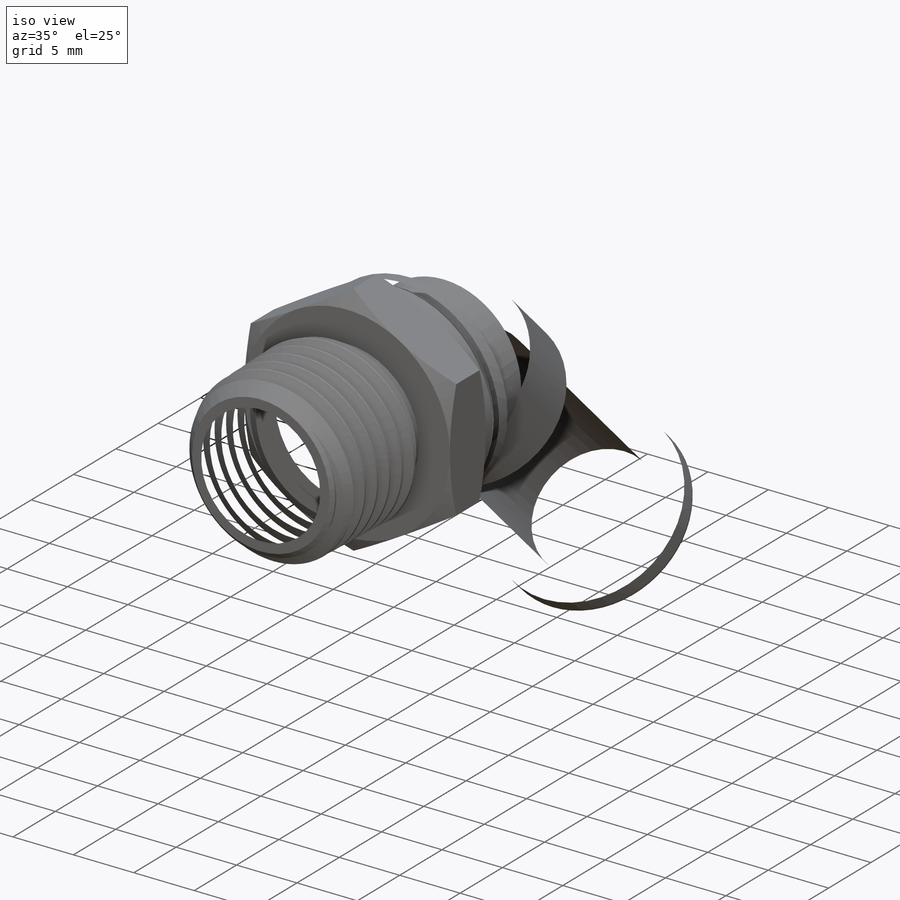
[diagram: iso view]
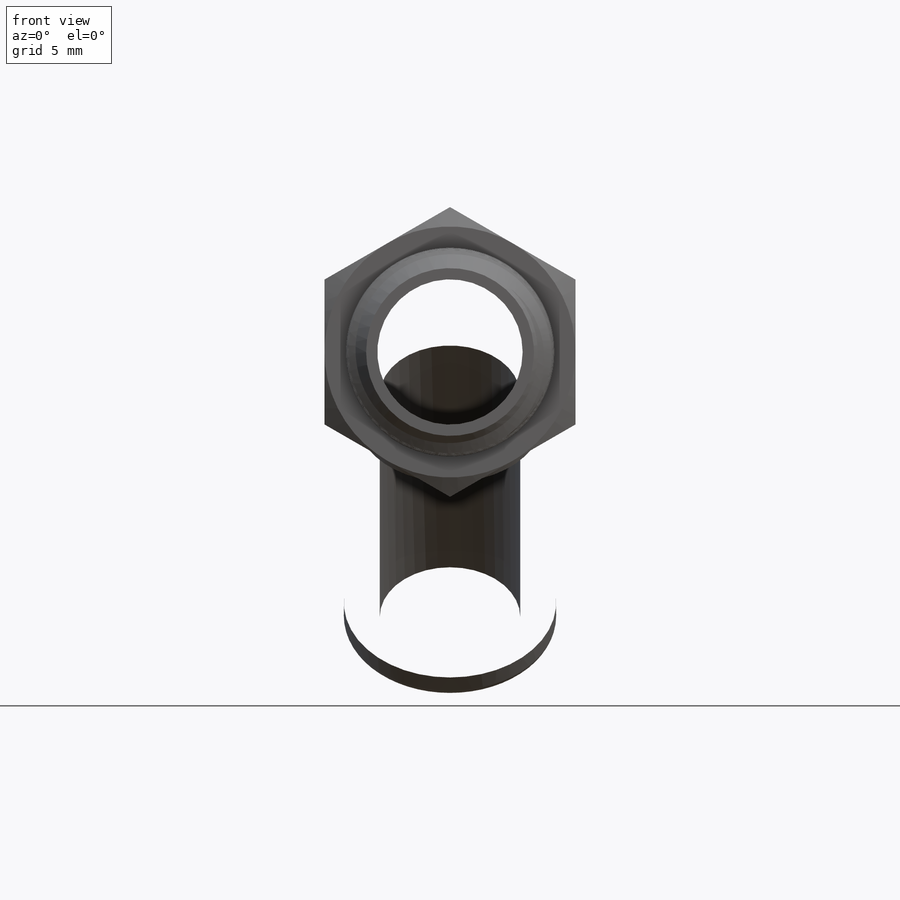
[diagram: front view]
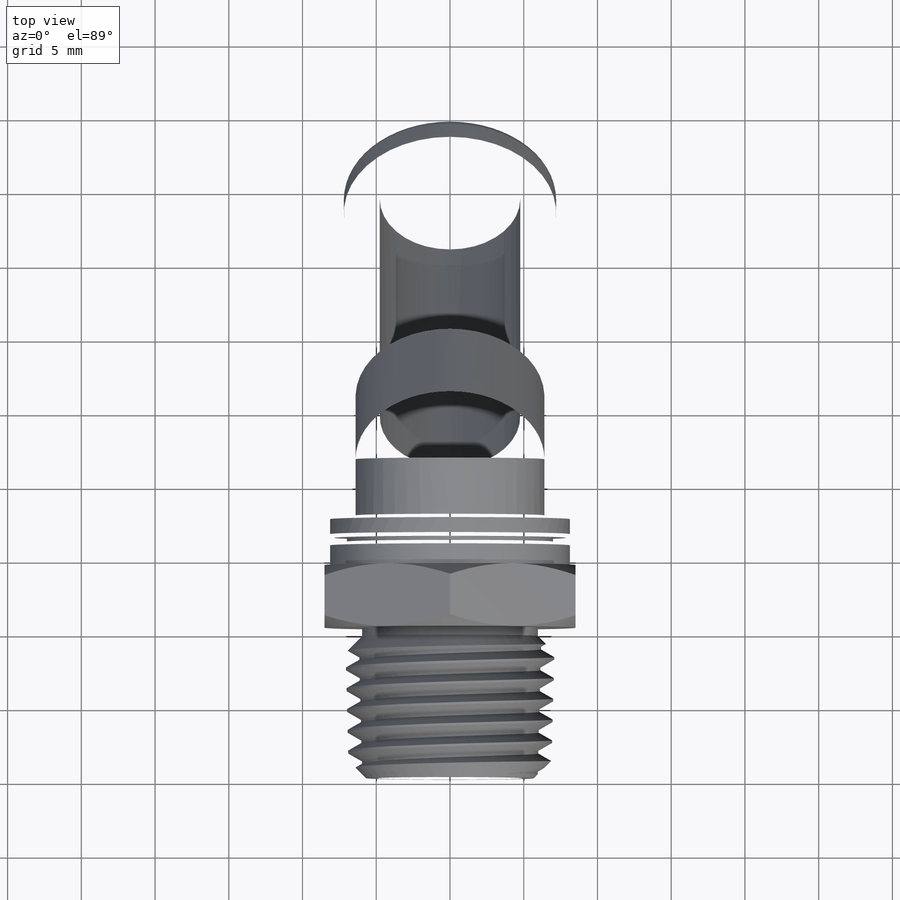
[diagram: top view]
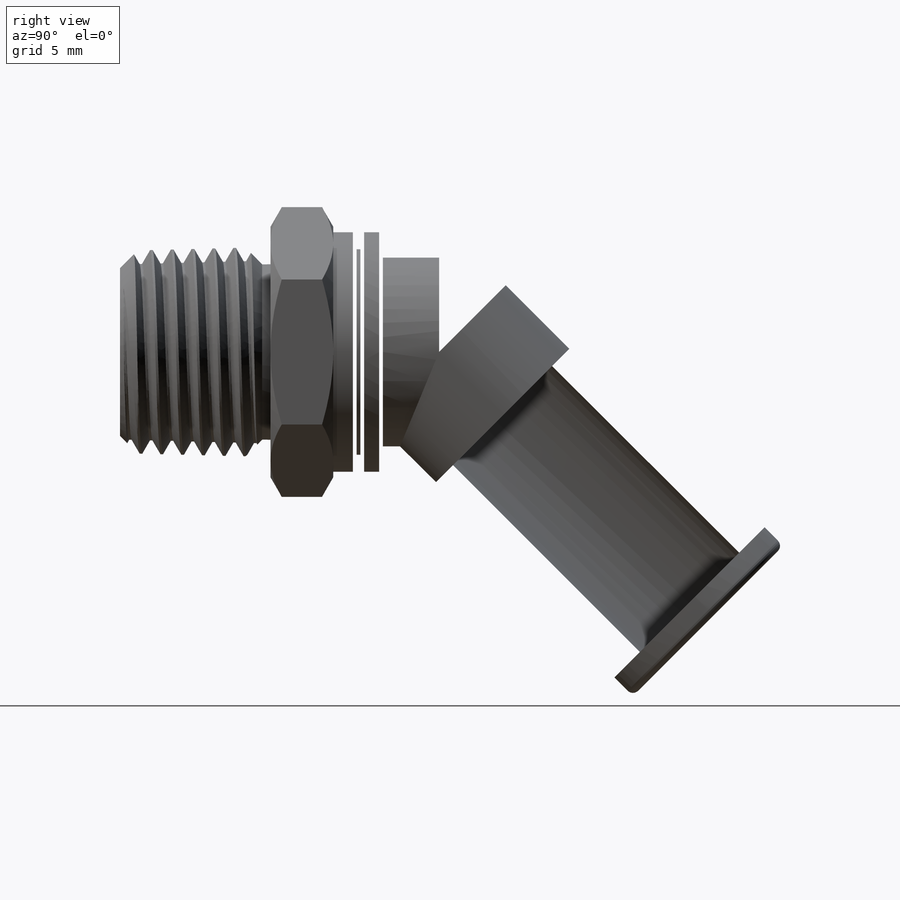
[diagram: right view]
SOLIDWORKS PART (.sldprt)
format: sldprt  version: not decoded by parser v0  size: 1,037,824 bytes
history: native  units: mm
features: sketch x20, cut_extrude x6, extrude x4, revolve x3, cut_revolve x2, plane x2, material x1, helix x1, sweep x1, chamfer x1 (+13 scaffold rows collapsed)
feature tree (54):
  scaffold x13  (default folders/planes/origin — collapsed)
  material  "Material <not specified>"
  sketch  "Sketch1"  dims[pipe od=13.716mm]
  extrude  "Extrude1"  Depth=10.20572mm Thread length=10.20572mm
  sketch  "Sketch2"
  helix  "Helix/Spiral1"  Pitch=12.23772mm pitch=1.411111mm
  sketch  "Sketch3"  dims[c1.D1=~3.36501mm c2.D1=60.0deg c2.D2=~0.176389mm c2.D3=~0.705556mm c2.D4=1.5875mm c3.D4=5.0deg]
  sweep  "Cut-Sweep1"
  sketch  "Sketch4"  dims[c1.D1=1.5875mm c2.D1=1.5deg c2.D2=~2.930708mm c3.D2=45.0deg c3.D3=~0.564444mm c3.D4=~1.418198mm c4.D4=45.0deg c4.D5=0.254mm c4.D6=1.016mm c4.D7=0.254mm]
  cut_revolve  "Cut-Revolve1"  Angle=360deg
  sketch  "Sketch5"  dims[Hex Size=17.018mm]
  extrude  "Extrude2"  Depth=4.2545mm
  sketch  "Sketch6"
  cut_extrude  "Cut-Extrude1"  [1 undecoded]
  sketch  "Sketch7"
  cut_extrude  "Cut-Extrude2"  [1 undecoded]
  sketch  "Sketch9"  dims[H=34.544mm L=23.114mm G=16.002mm]
  sketch  "Sketch10"  dims[c1.D3=0.508mm c1.D1=1.905mm c1.D2=1.27mm c1.tube od=12.7mm c1.D4=17.78mm c1.D5=14.4018mm c1.D7=~30.249738mm c2.D7=40.0deg c2.D8=2.032mm c2.D1=~31.762975mm c3.D1=45.0deg c4.D1=~17.267413mm c5.D1=45.0deg c5.tube od=9.525mm c5.D4=16.002mm c5.D8=~12.24153mm c5.D9=1.778mm c5.D10=16.002mm]
  revolve  "Revolve1"  Angle=360deg
  sketch  "Sketch11"  dims[c1.D1=~9.18971mm c2.D1=50.0deg c2.D2=1.524mm c2.D3=~12.78128mm c2.D4=1.5875mm c2.D5=0.254mm c2.D6=1.143mm c3.D2=~11.315123mm c3.D7=~11.297162mm c3.D1=1.524mm c3.D3=0.381mm]
  revolve  "Revolve2"  Angle=360deg
  plane  "Plane1"
  sketch  "Sketch21"
  plane  "Plane2"
  sketch  "Sketch22"  dims[D1=12.8016mm]
  extrude  "Extrude6"  [1 undecoded]
  sketch  "Sketch23"  dims[D1=12.8016mm]
  extrude  "Extrude7"  [1 undecoded]
  sketch  "Sketch24"  dims[D1=0.0mm]
  revolve  "Revolve5"  Angle=45deg
  chamfer  "Chamfer1"  Distance=0.254mm Angle=45deg
  sketch  "Sketch18"  dims[D1=0.762mm]
  cut_extrude  "Cut-Extrude5"  [1 undecoded]
  sketch  "Sketch25"
  cut_extrude  "Cut-Extrude6"  [1 undecoded]
  sketch  "Sketch26"  dims[D1=0.762mm]
  cut_extrude  "Cut-Extrude7"  [1 undecoded]
  sketch  "Sketch27"  dims[D1=0.0mm]
  cut_revolve  "Cut-Revolve2"  Angle=45deg
  sketch  "Sketch28"
  cut_extrude  "Cut-Extrude8"  [1 undecoded]
  sketch  "Sketch29"
decode coverage: 22 of 38 modeling features carry decoded parameters
note: ~ marks probable driven/reference dimensions
note: 8 parameter values undecoded
summary: no parameter record found for 8 features
note: suppression state not decoded; provenance and decode notes live in map.json
